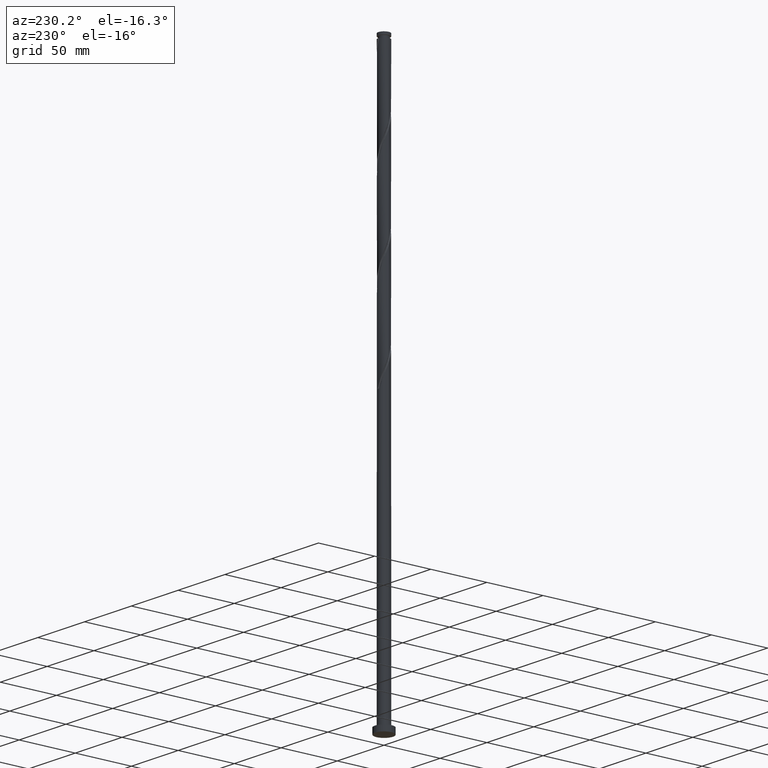
[diagram: clean part render]
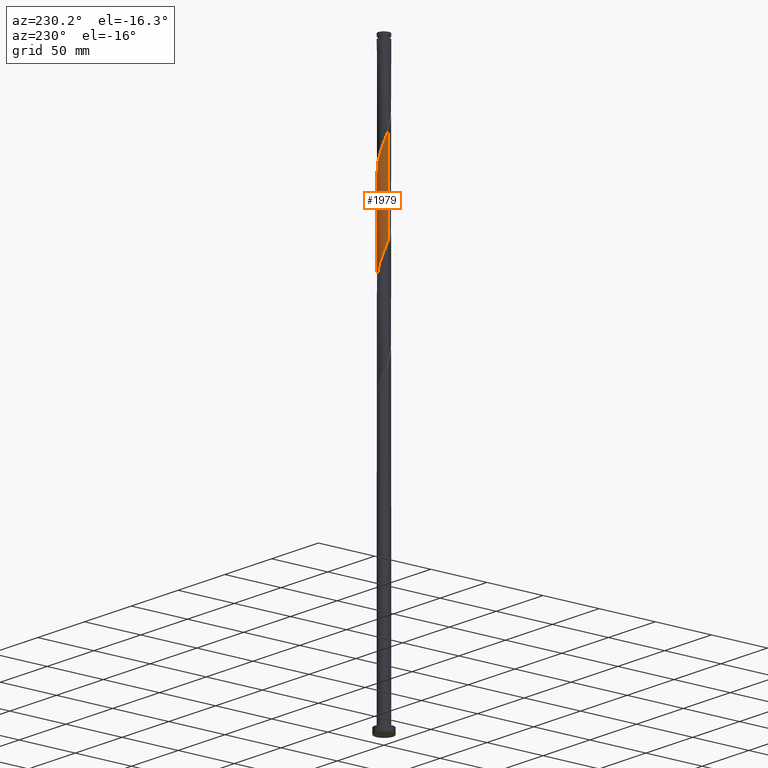
[diagram: same view with one face highlighted and labeled with its STEP entity id]
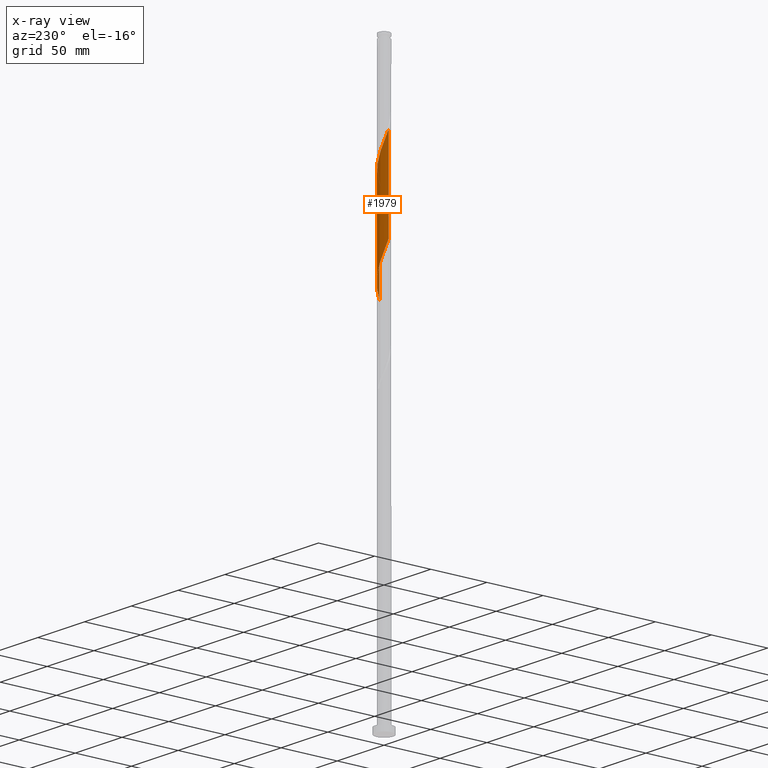
[diagram: x-ray of the same camera — body ghosted, the highlighted face saturated]
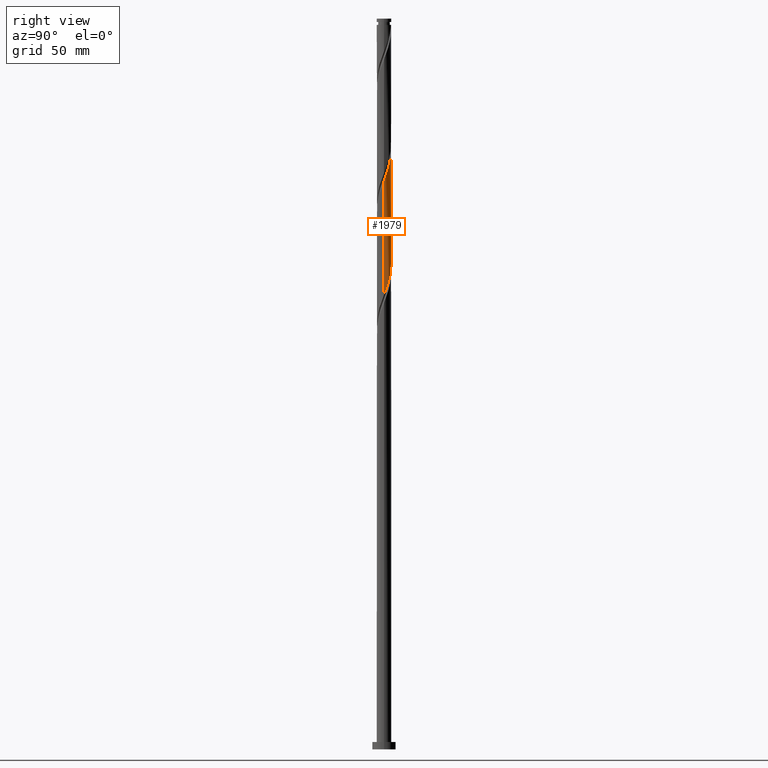
[diagram: same view with one face highlighted and labeled with its STEP entity id]
A machine part, auxiliary view. The second image highlights one B-rep face of the part: STEP entity #1979.
The next image is the same camera in x-ray: the body ghosted, the highlighted face saturated — about 0% of this face is hidden behind the body in this view.
A second angle (right view) of the same face is appended — the face is thin or edge-on in the first view.
In plain terms, the highlighted cylindrical surface (edge-blend (fillet) strip) has radius 5 mm, axis along (-0, -0, -1).
Its self-contained STEP definition (entity closure, byte-faithful):
#1 = CARTESIAN_POINT ( 'NONE',  ( -2.350710717171619279, 4.440346049302474007, 338.1760069355655673 ) ) ;
#10 = CARTESIAN_POINT ( 'NONE',  ( 4.907774916897412076, 0.9559002903402679108, 313.4364236022323666 ) ) ;
#20 = CARTESIAN_POINT ( 'NONE',  ( -5.000000000000000888, 0.000000000000000000, 500.0000000000000000 ) ) ;
#35 = CARTESIAN_POINT ( 'NONE',  ( 4.997997709003384692, 0.5123795606565222371, 390.2593402688988249 ) ) ;
#44 = CARTESIAN_POINT ( 'NONE',  ( 1.439273929266587038, 4.813626955832283727, 405.8843402688988817 ) ) ;
#57 = CARTESIAN_POINT ( 'NONE',  ( -0.9949874371066257384, 4.900000000000005684, 412.3947569355655673 ) ) ;
#71 = CARTESIAN_POINT ( 'NONE',  ( 4.421468617940776724, 2.386027907201955234, 395.4676736022321393 ) ) ;
#82 = CARTESIAN_POINT ( 'NONE',  ( -4.813626955832284615, 1.439273929266586372, 426.7176736022322530 ) ) ;
#96 = VECTOR ( 'NONE', #1314, 1000.000000000000000 ) ;
#136 = CARTESIAN_POINT ( 'NONE',  ( -4.900000000000001243, 0.9949874371066268486, 349.8947569355656242 ) ) ;
#156 = CARTESIAN_POINT ( 'NONE',  ( -2.761260863840565349, 4.168385591787602706, 339.4780902688989954 ) ) ;
#167 = CARTESIAN_POINT ( 'NONE',  ( 4.440346049302474007, 2.350710717171620168, 317.3426736022323098 ) ) ;
#205 = CARTESIAN_POINT ( 'NONE',  ( -2.386027907201956566, 4.421468617940775836, 416.3010069355655673 ) ) ;
#238 = CARTESIAN_POINT ( 'NONE',  ( -4.440346049302479337, 2.350710717171623276, 424.1135069355655105 ) ) ;
#304 = CARTESIAN_POINT ( 'NONE',  ( 0.01992645462128569619, 4.999960293482964779, 331.6655902688988817 ) ) ;
#314 = CARTESIAN_POINT ( 'NONE',  ( 1.477595313556730350, 4.802002290996620459, 327.7593402688988817 ) ) ;
#343 = CARTESIAN_POINT ( 'NONE',  ( 5.000000000000007994, 0.009963266871312111139, 388.9309135120859651 ) ) ;
#347 = ORIENTED_EDGE ( 'NONE', *, *, #587, .T. ) ;
#349 = CARTESIAN_POINT ( 'NONE',  ( -5.000000000000002665, 3.188789371481974126E-13, 352.5516205802283025 ) ) ;
#372 = CARTESIAN_POINT ( 'NONE',  ( -1.931811610379344124, 4.611735454468701256, 414.9989236022321961 ) ) ;
#382 = CARTESIAN_POINT ( 'NONE',  ( 2.761260863840569790, 4.168385591787605371, 401.9780902688988249 ) ) ;
#392 = EDGE_CURVE ( 'NONE', #1516, #2057, #975, .T. ) ;
#411 = CARTESIAN_POINT ( 'NONE',  ( -5.000000000000007105, 2.924349179285048291E-15, 430.5712266242353508 ) ) ;
#461 = CARTESIAN_POINT ( 'NONE',  ( 5.000000000000000888, 0.4823990746449065559, 312.1609340189784803 ) ) ;
#472 = CARTESIAN_POINT ( 'NONE',  ( -4.999960293482964779, 0.01992645462128600845, 352.4989236022323666 ) ) ;
#480 = CARTESIAN_POINT ( 'NONE',  ( 3.549595960373001180, 3.521415697997567040, 321.2489236022323666 ) ) ;
#504 = CARTESIAN_POINT ( 'NONE',  ( 0.5123795606565214600, 4.997997709003380251, 330.3635069355655105 ) ) ;
#539 = CARTESIAN_POINT ( 'NONE',  ( 1.894992323219103492, 4.626986502567381088, 404.5822569355656242 ) ) ;
#550 = CARTESIAN_POINT ( 'NONE',  ( -5.000000000000008882, 0.4823990746449021150, 429.2952465188192264 ) ) ;
#553 = EDGE_CURVE ( 'NONE', #829, #1516, #1637, .T. ) ;
#562 = CARTESIAN_POINT ( 'NONE',  ( 4.611735454468701256, 1.931811610379344124, 394.1655902688988817 ) ) ;
#587 = EDGE_CURVE ( 'NONE', #1678, #2057, #1691, .T. ) ;
#589 = DIRECTION ( 'NONE',  ( -0.000000000000000000, -0.000000000000000000, -1.000000000000000000 ) ) ;
#627 = CARTESIAN_POINT ( 'NONE',  ( -3.871020385485624438, 3.202766786473272731, 343.3843402688989386 ) ) ;
#639 = CARTESIAN_POINT ( 'NONE',  ( 0.9949874371066277368, 4.900000000000001243, 329.0614236022323098 ) ) ;
#678 = CARTESIAN_POINT ( 'NONE',  ( 4.900000000000005684, 0.9949874371066259604, 391.5614236022323098 ) ) ;
#682 = ORIENTED_EDGE ( 'NONE', *, *, #1567, .F. ) ;
#687 = CARTESIAN_POINT ( 'NONE',  ( -2.794397346837615537, 4.146244501713202801, 417.6030902688988249 ) ) ;
#699 = CARTESIAN_POINT ( 'NONE',  ( -0.5123795606565219041, 4.997997709003384692, 411.0926736022322530 ) ) ;
#730 = CARTESIAN_POINT ( 'NONE',  ( -0.01992645462128253553, 4.999960293482969220, 409.7905902688988249 ) ) ;
#779 = CARTESIAN_POINT ( 'NONE',  ( -4.802002290996619571, 1.477595313556731682, 348.5926736022321961 ) ) ;
#799 = CARTESIAN_POINT ( 'NONE',  ( -1.894992323219101049, 4.626986502567377535, 336.8739236022322530 ) ) ;
#809 = CARTESIAN_POINT ( 'NONE',  ( 5.000000000000002665, 2.143404433510405067E-15, 310.8849539135624696 ) ) ;
#820 = CARTESIAN_POINT ( 'NONE',  ( 3.202766786473273175, 3.871020385485623549, 322.5510069355654537 ) ) ;
#829 = VERTEX_POINT ( 'NONE', #411 ) ;
#857 = CARTESIAN_POINT ( 'NONE',  ( -4.168385591787607147, 2.761260863840569346, 422.8114236022321961 ) ) ;
#900 = ORIENTED_EDGE ( 'NONE', *, *, #553, .F. ) ;
#931 = AXIS2_PLACEMENT_3D ( 'NONE', #1724, #589, #934 ) ;
#934 = DIRECTION ( 'NONE',  ( -1.000000000000000000, 0.000000000000000000, 0.000000000000000000 ) ) ;
#941 = CARTESIAN_POINT ( 'NONE',  ( 2.386027907201954790, 4.421468617940769619, 325.1551736022322530 ) ) ;
#950 = CARTESIAN_POINT ( 'NONE',  ( 4.168385591787602706, 2.761260863840563573, 318.6447569355656810 ) ) ;
#960 = CARTESIAN_POINT ( 'NONE',  ( 2.794397346837616869, 4.146244501713196584, 323.8530902688989954 ) ) ;
#967 = CARTESIAN_POINT ( 'NONE',  ( -5.000000000000002665, 3.188789371481974126E-13, 352.5516205802283025 ) ) ;
#975 =( BOUNDED_CURVE ( )  B_SPLINE_CURVE ( 2, ( #349, #1474, #472, #1783, #136, #779, #1304, #1440, #1942, #627, #2091, #1281, #156, #1, #799, #1932, #1452, #1119, #304, #504, #639, #314, #1143, #941, #960, #820, #480, #1953, #950, #167, #1602, #1429, #10, #461, #809 ),
 .UNSPECIFIED., .F., .T. ) 
 B_SPLINE_CURVE_WITH_KNOTS ( ( 3, 2, 2, 2, 2, 2, 2, 2, 2, 2, 2, 2, 2, 2, 2, 2, 2, 3 ),
 ( 0.6795286902180898148, 0.6796875000000000000, 0.6875000000000000000, 0.6953125000000000000, 0.7031250000000000000, 0.7109375000000000000, 0.7187500000000000000, 0.7265625000000000000, 0.7343750000000000000, 0.7421875000000000000, 0.7500000000000000000, 0.7578125000000000000, 0.7656250000000000000, 0.7734375000000000000, 0.7812500000000000000, 0.7890625000000000000, 0.7968750000000000000, 0.8045286902180871502 ),
 .UNSPECIFIED. ) 
 CURVE ( )  GEOMETRIC_REPRESENTATION_ITEM ( )  RATIONAL_B_SPLINE_CURVE ( ( 0.9089165573359534456, 0.9090019243628568724, 0.9090909090909472523, 0.9047133878838534704, 0.9090909090909472523, 0.9047133878838534704, 0.9090909090909472523, 0.9047133878838534704, 0.9090909090909472523, 0.9047133878838534704, 0.9090909090909472523, 0.9047133878838534704, 0.9090909090909472523, 0.9047133878838534704, 0.9090909090909472523, 0.9047133878838534704, 0.9090909090909472523, 0.9047133878838534704, 0.9090909090909472523, 0.9047133878838534704, 0.9090909090909472523, 0.9047133878838534704, 0.9090909090909472523, 0.9047133878838534704, 0.9090909090909472523, 0.9047133878838534704, 0.9090909090909472523, 0.9047133878838534704, 0.9090909090909472523, 0.9047133878838534704, 0.9090909090909472523, 0.9047133878838534704, 0.9090909090909472523, 0.9048023726119452936, 0.9089165573359505590 ) ) 
 REPRESENTATION_ITEM ( '' )  );
#999 = CARTESIAN_POINT ( 'NONE',  ( 0.9559002903402716855, 4.907774916897417405, 407.1864236022323098 ) ) ;
#1011 = CARTESIAN_POINT ( 'NONE',  ( 5.000000000000007105, -4.689396134532302455E-15, 388.9045599575687220 ) ) ;
#1016 = EDGE_LOOP ( 'NONE', ( #682, #347, #1964, #900 ) ) ;
#1023 = CARTESIAN_POINT ( 'NONE',  ( -3.202766786473275396, 3.871020385485629767, 418.9051736022322530 ) ) ;
#1119 = CARTESIAN_POINT ( 'NONE',  ( -0.4725266514139499496, 5.001922877962546643, 332.9676736022323098 ) ) ;
#1124 =( BOUNDED_CURVE ( )  B_SPLINE_CURVE ( 2, ( #1958, #343, #1490, #35, #678, #1352, #562, #71, #1512, #1821, #1845, #2005, #382, #1188, #539, #44, #999, #1664, #730, #699, #57, #1834, #372, #205, #687, #1023, #1684, #1992, #857, #238, #1200, #82, #1534, #550, #1543 ),
 .UNSPECIFIED., .F., .T. ) 
 B_SPLINE_CURVE_WITH_KNOTS ( ( 3, 2, 2, 2, 2, 2, 2, 2, 2, 2, 2, 2, 2, 2, 2, 2, 2, 3 ),
 ( 0.4295286902180873168, 0.4296875000000000000, 0.4375000000000000000, 0.4453125000000000000, 0.4531250000000000000, 0.4609375000000000000, 0.4687500000000000000, 0.4765625000000000000, 0.4843750000000000000, 0.4921875000000000000, 0.5000000000000000000, 0.5078125000000000000, 0.5156250000000000000, 0.5234375000000000000, 0.5312500000000000000, 0.5390625000000000000, 0.5468750000000000000, 0.5545286902180872612 ),
 .UNSPECIFIED. ) 
 CURVE ( )  GEOMETRIC_REPRESENTATION_ITEM ( )  RATIONAL_B_SPLINE_CURVE ( ( 0.9089165573359563322, 0.9090019243628609802, 0.9090909090909526924, 0.9047133878838587995, 0.9090909090909526924, 0.9047133878838587995, 0.9090909090909526924, 0.9047133878838587995, 0.9090909090909526924, 0.9047133878838587995, 0.9090909090909526924, 0.9047133878838587995, 0.9090909090909526924, 0.9047133878838587995, 0.9090909090909526924, 0.9047133878838587995, 0.9090909090909526924, 0.9047133878838587995, 0.9090909090909526924, 0.9047133878838587995, 0.9090909090909526924, 0.9047133878838587995, 0.9090909090909526924, 0.9047133878838587995, 0.9090909090909526924, 0.9047133878838587995, 0.9090909090909526924, 0.9047133878838587995, 0.9090909090909526924, 0.9047133878838587995, 0.9090909090909526924, 0.9047133878838587995, 0.9090909090909526924, 0.9048023726119505117, 0.9089165573359563322 ) ) 
 REPRESENTATION_ITEM ( '' )  );
#1143 = CARTESIAN_POINT ( 'NONE',  ( 1.931811610379345234, 4.611735454468695927, 326.4572569355656242 ) ) ;
#1188 = CARTESIAN_POINT ( 'NONE',  ( 2.350710717171625053, 4.440346049302477560, 403.2801736022323098 ) ) ;
#1200 = CARTESIAN_POINT ( 'NONE',  ( -4.626986502567381976, 1.894992323219104380, 425.4155902688988249 ) ) ;
#1214 = VECTOR ( 'NONE', #1362, 1000.000000000000000 ) ;
#1281 = CARTESIAN_POINT ( 'NONE',  ( -3.171811010509507867, 3.896425134272730073, 340.7801736022323098 ) ) ;
#1294 = CARTESIAN_POINT ( 'NONE',  ( 5.000000000000002665, 2.143404433510405067E-15, 310.8849539135624696 ) ) ;
#1304 = CARTESIAN_POINT ( 'NONE',  ( -4.611735454468697704, 1.931811610379343014, 347.2905902688989386 ) ) ;
#1314 = DIRECTION ( 'NONE',  ( -0.000000000000000000, -0.000000000000000000, -1.000000000000000000 ) ) ;
#1352 = CARTESIAN_POINT ( 'NONE',  ( 4.802002290996628453, 1.477595313556729684, 392.8635069355655105 ) ) ;
#1362 = DIRECTION ( 'NONE',  ( -0.000000000000000000, -0.000000000000000000, -1.000000000000000000 ) ) ;
#1429 = CARTESIAN_POINT ( 'NONE',  ( 4.813626955832278398, 1.439273929266582597, 314.7385069355656242 ) ) ;
#1440 = CARTESIAN_POINT ( 'NONE',  ( -4.421468617940769619, 2.386027907201954346, 345.9885069355655105 ) ) ;
#1452 = CARTESIAN_POINT ( 'NONE',  ( -0.9559002903402668005, 4.907774916897412965, 334.2697569355656242 ) ) ;
#1474 = CARTESIAN_POINT ( 'NONE',  ( -5.000000000000000888, 0.009963266871471988459, 352.5252670257114005 ) ) ;
#1490 = CARTESIAN_POINT ( 'NONE',  ( 4.999960293482969220, 0.01992645462128285472, 388.9572569355656242 ) ) ;
#1512 = CARTESIAN_POINT ( 'NONE',  ( 4.146244501713201913, 2.794397346837617313, 396.7697569355655673 ) ) ;
#1516 = VERTEX_POINT ( 'NONE', #967 ) ;
#1534 = CARTESIAN_POINT ( 'NONE',  ( -4.907774916897419182, 0.9559002903402689100, 428.0197569355655105 ) ) ;
#1543 = CARTESIAN_POINT ( 'NONE',  ( -5.000000000000007105, 2.924349179285047897E-15, 430.5712266242353508 ) ) ;
#1567 = EDGE_CURVE ( 'NONE', #1678, #829, #1124, .T. ) ;
#1602 = CARTESIAN_POINT ( 'NONE',  ( 4.626986502567378423, 1.894992323219099717, 316.0405902688990523 ) ) ;
#1637 = LINE ( 'NONE', #20, #96 ) ;
#1664 = CARTESIAN_POINT ( 'NONE',  ( 0.4725266514139521701, 5.001922877962551972, 408.4885069355656242 ) ) ;
#1678 = VERTEX_POINT ( 'NONE', #1011 ) ;
#1684 = CARTESIAN_POINT ( 'NONE',  ( -3.549595960373005177, 3.521415697997570593, 420.2072569355655673 ) ) ;
#1691 = LINE ( 'NONE', #1999, #1214 ) ;
#1724 = CARTESIAN_POINT ( 'NONE',  ( 0.000000000000000000, 0.000000000000000000, 500.0000000000000000 ) ) ;
#1783 = CARTESIAN_POINT ( 'NONE',  ( -4.997997709003380251, 0.5123795606565213490, 351.1968402688987680 ) ) ;
#1821 = CARTESIAN_POINT ( 'NONE',  ( 3.871020385485630655, 3.202766786473274951, 398.0718402688988249 ) ) ;
#1834 = CARTESIAN_POINT ( 'NONE',  ( -1.477595313556732348, 4.802002290996626677, 413.6968402688987680 ) ) ;
#1845 = CARTESIAN_POINT ( 'NONE',  ( 3.521415697997572369, 3.549595960373003400, 399.3739236022322530 ) ) ;
#1893 = FACE_OUTER_BOUND ( 'NONE', #1016, .T. ) ;
#1932 = CARTESIAN_POINT ( 'NONE',  ( -1.439273929266583041, 4.813626955832280174, 335.5718402688988817 ) ) ;
#1942 = CARTESIAN_POINT ( 'NONE',  ( -4.146244501713199249, 2.794397346837614204, 344.6864236022323098 ) ) ;
#1953 = CARTESIAN_POINT ( 'NONE',  ( 3.896425134272730961, 3.171811010509505646, 319.9468402688988817 ) ) ;
#1958 = CARTESIAN_POINT ( 'NONE',  ( 5.000000000000007105, -4.689396134532302455E-15, 388.9045599575687220 ) ) ;
#1964 = ORIENTED_EDGE ( 'NONE', *, *, #392, .F. ) ;
#1979 = ADVANCED_FACE ( 'NONE', ( #1893 ), #2053, .T. ) ;
#1992 = CARTESIAN_POINT ( 'NONE',  ( -3.896425134272733626, 3.171811010509512307, 421.5093402688988817 ) ) ;
#1999 = CARTESIAN_POINT ( 'NONE',  ( 5.000000000000000888, 6.123233995736767268E-16, 500.0000000000000000 ) ) ;
#2005 = CARTESIAN_POINT ( 'NONE',  ( 3.171811010509511863, 3.896425134272734514, 400.6760069355654537 ) ) ;
#2053 = CYLINDRICAL_SURFACE ( 'NONE', #931, 5.000000000000000888 ) ;
#2057 = VERTEX_POINT ( 'NONE', #1294 ) ;
#2091 = CARTESIAN_POINT ( 'NONE',  ( -3.521415697997567040, 3.549595960373002068, 342.0822569355656242 ) ) ;